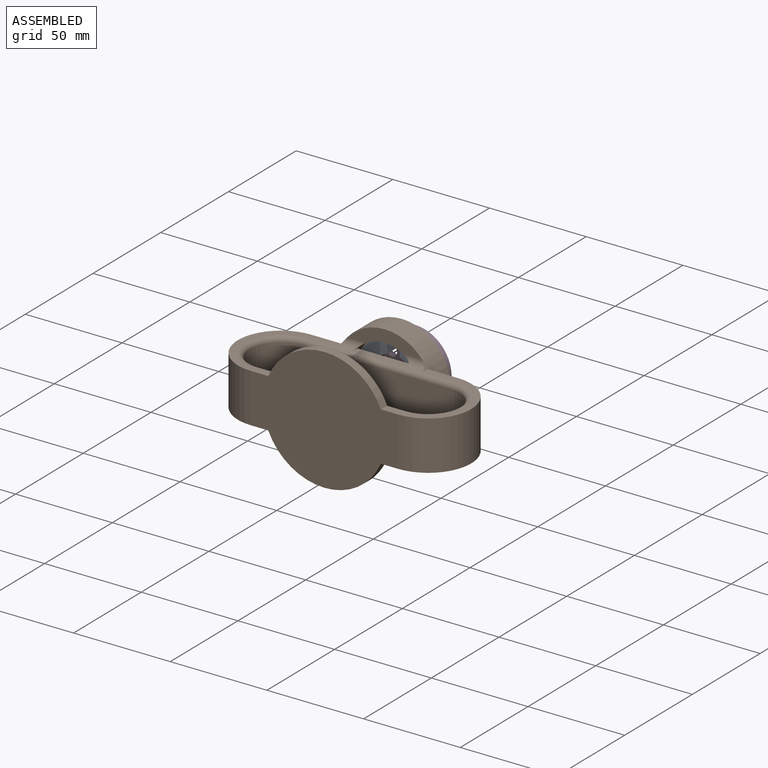
[diagram: assembled view]
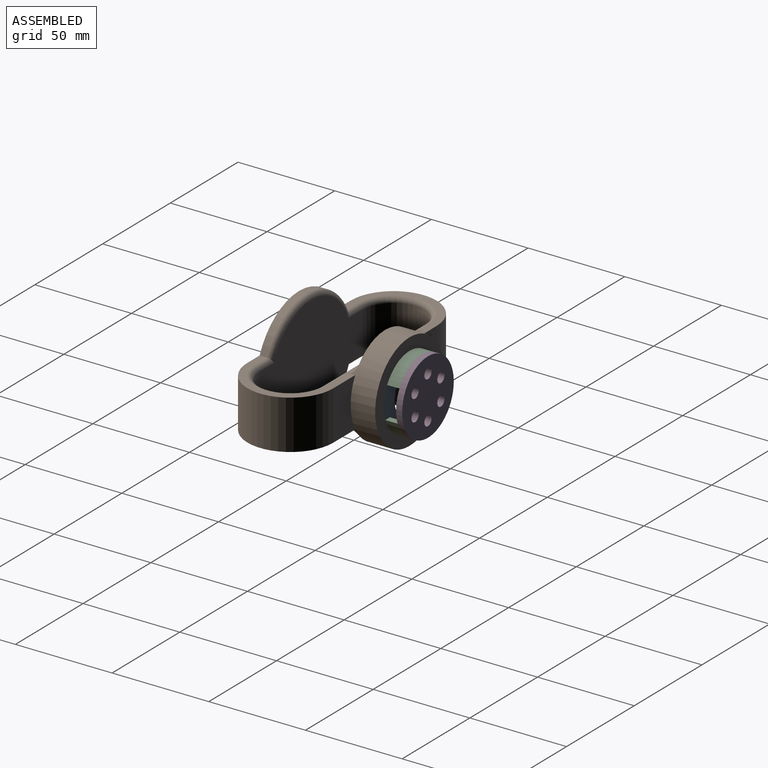
[diagram: assembled view, second angle]
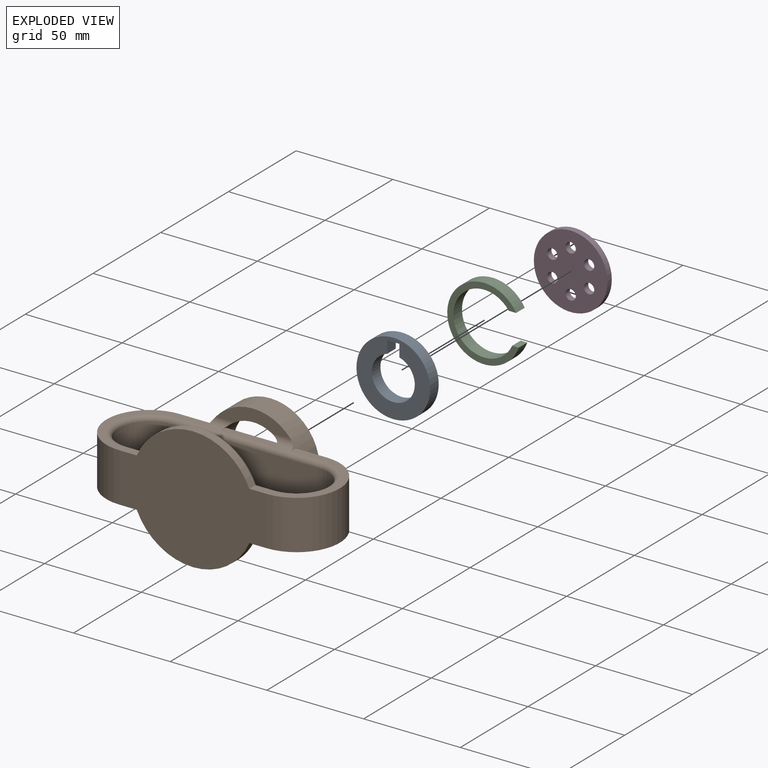
[diagram: exploded view]
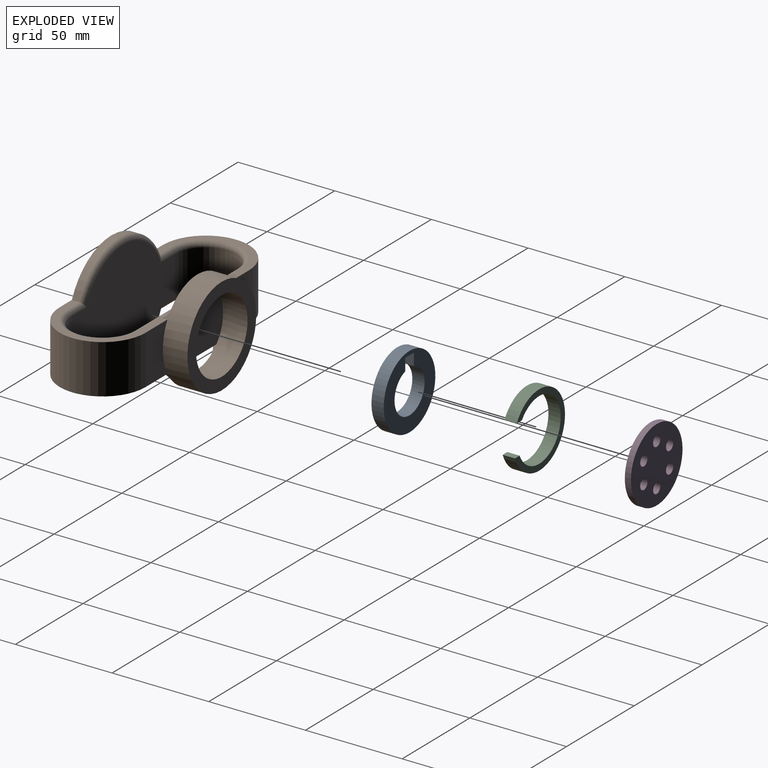
[diagram: exploded view, second angle]
ASSEMBLY  parts=4 mates=3
PART A: 7 faces, bbox 38.1x6.4x38.1 mm
  f0: plane 6.35x6.35mm, normal (1,0,0), area 40.3mm2, adj f1,f4,f5,f6
  f1: plane 6.35x6.35mm, normal (0,0,-1), area 40.3mm2, adj f0,f2,f5,f6
  f2: plane 6.35x6.35mm, normal (-1,0,0), area 40.3mm2, adj f1,f4,f5,f6
  f3: cylinder r=19.05mm len=38.1mm, axis (0,1,0), area 760.1mm2, adj f5,f6
  f4: cylinder r=11.11mm len=22.23mm, axis (0,1,0), area 402.5mm2, adj f0,f2,f5,f6
  f5: plane 38.1x38.1mm, normal (0,-1,0), area 713.8mm2, adj f0,f1,f2,f3,f4
  f6: plane 38.1x38.1mm, normal (0,1,0), area 713.8mm2, adj f0,f1,f2,f3,f4
PART B: 39 faces, bbox 120.7x57.2x68.7 mm
  f0: plane 28.4x3.81mm, normal (0,0,1), area 108.2mm2, adj f4,f20,f31
  f1: plane 44.45x38.33mm, normal (0,0,1), area 338.9mm2, adj f5,f8,f9,f19,f22,f29,f30,f31
  f2: plane 28.4x3.81mm, normal (0,0,-1), area 108.2mm2, adj f4,f20,f25
  f3: plane 44.45x38.33mm, normal (0,0,-1), area 338.9mm2, adj f5,f8,f9,f19,f21,f23,f24,f25
  f4: plane 38.1x25.4mm, normal (0,1,0), area 890.3mm2, adj f0,f2,f20
  f5: plane 25.4x16.1mm, normal (0,1,0), area 350.6mm2, adj f1,f3,f8,f19
  f6: plane 44.45x38.33mm, normal (0,0,1), area 338.9mm2, adj f9,f10,f11,f19,f22,f31,f33,f34
  f7: plane 44.45x38.33mm, normal (0,0,-1), area 338.9mm2, adj f9,f10,f11,f19,f21,f25,f27,f28
  f8: cylinder r=22.23mm len=44.45mm, axis (0,0,-1), area 1773.5mm2, adj f1,f3,f5,f9
  f9: plane 76.2x63.5mm, normal (0,-1,0), area 3533.6mm2, adj f1,f3,f6,f7,f8,f10,f21,f22
  f10: cylinder r=22.23mm len=44.45mm, axis (0,0,-1), area 1773.5mm2, adj f6,f7,f9,f11
  f11: plane 25.4x16.1mm, normal (0,1,0), area 350.6mm2, adj f6,f7,f10,f19
  f12: cylinder r=15.88mm len=31.75mm, axis (0,0,-1), area 1013.4mm2, adj f13,f15,f23,f29
  f13: plane 76.2x58.42mm, normal (0,1,0), area 3066.2mm2, adj f12,f14,f24,f26,f28,f30,f32,f34
  f14: cylinder r=15.88mm len=31.75mm, axis (0,0,-1), area 1013.4mm2, adj f13,f15,f27,f33
  f15: plane 76.2x20.32mm, normal (0,-1,0), area 1548.4mm2, adj f12,f14,f25,f31
  f16: plane 38.6x8.89mm, normal (0,-1,0), area 205.6mm2, adj f19,f20,f35,f36
  f17: plane 50.8x50.8mm, normal (0,1,0), area 886.7mm2, adj f19,f20
  f18: plane 38.6x8.89mm, normal (0,-1,0), area 205.6mm2, adj f19,f20,f37,f38
  f19: cylinder r=25.4mm len=50.8mm, axis (0,-1,0), area 2041.6mm2, adj f1,f3,f5,f6,f7,f11,f16,f17
  f20: cylinder r=19.05mm len=38.1mm, axis (0,-1,0), area 1538mm2, adj f0,f2,f4,f16,f17,f18,f35,f36
  f21: cylinder r=31.75mm len=58.2mm, axis (0,-1,0), area 280.5mm2, adj f3,f7,f9,f26
  f22: cylinder r=31.75mm len=58.2mm, axis (0,-1,0), area 280.5mm2, adj f1,f6,f9,f32
  f23: torus R=18.41mm, axis (0,0,1), area 210.6mm2, adj f3,f12,f24,f25
  f24: cylinder r=2.54mm len=10.71mm, axis (-1,0,0), area 38.4mm2, adj f3,f13,f23,f26
  f25: cylinder r=2.54mm len=76.2mm, axis (1,0,0), area 304mm2, adj f2,f3,f7,f15,f23,f27,f35,f36
  f26: torus R=29.21mm, axis (0,1,0), area 290mm2, adj f13,f21,f24,f28
  f27: torus R=18.41mm, axis (0,0,1), area 210.6mm2, adj f7,f14,f25,f28
  f28: cylinder r=2.54mm len=10.71mm, axis (-1,0,0), area 38.4mm2, adj f7,f13,f26,f27
  f29: torus R=18.41mm, axis (0,0,1), area 210.6mm2, adj f1,f12,f30,f31
  f30: cylinder r=2.54mm len=10.71mm, axis (1,0,0), area 38.4mm2, adj f1,f13,f29,f32
  f31: cylinder r=2.54mm len=76.2mm, axis (-1,0,0), area 304mm2, adj f0,f1,f6,f15,f29,f33,f37,f38
  f32: torus R=29.21mm, axis (0,1,0), area 290mm2, adj f13,f22,f30,f34
  f33: torus R=18.41mm, axis (0,0,1), area 210.6mm2, adj f6,f14,f31,f34
  f34: cylinder r=2.54mm len=10.71mm, axis (1,0,0), area 38.4mm2, adj f6,f13,f32,f33
  f35: cylinder r=3.81mm len=12.49mm, axis (1,0,0), area 50.2mm2, adj f16,f19,f20,f25
  f36: cylinder r=3.81mm len=12.49mm, axis (1,0,0), area 50.2mm2, adj f16,f19,f20,f25
  f37: cylinder r=3.81mm len=12.49mm, axis (-1,0,0), area 50.2mm2, adj f18,f19,f20,f31
  f38: cylinder r=3.81mm len=12.49mm, axis (-1,0,0), area 50.2mm2, adj f18,f19,f20,f31
PART C: 6 faces, bbox 37x6.4x38.1 mm
  f0: plane 6.35x3.42mm, normal (0,0,1), area 21.7mm2, adj f1,f3,f4,f5
  f1: cylinder r=15.88mm len=31.75mm, axis (0,1,0), area 527.2mm2, adj f0,f2,f4,f5
  f2: plane 6.35x3.78mm, normal (0,0,-1), area 24mm2, adj f1,f3,f4,f5
  f3: cylinder r=19.05mm len=38.1mm, axis (0,1,0), area 655.7mm2, adj f0,f2,f4,f5
  f4: plane 38.1x36.96mm, normal (0,-1,0), area 295.8mm2, adj f0,f1,f2,f3
  f5: plane 38.1x36.96mm, normal (0,1,0), area 295.8mm2, adj f0,f1,f2,f3
PART D: 9 faces, bbox 38.1x3.2x38.1 mm
  f0: cylinder r=2.65mm len=5.3mm, axis (0,1,0), area 52.9mm2, adj f7,f8
  f1: cylinder r=2.65mm len=5.3mm, axis (0,1,0), area 52.9mm2, adj f7,f8
  f2: cylinder r=2.65mm len=5.3mm, axis (0,1,0), area 52.9mm2, adj f7,f8
  f3: cylinder r=2.65mm len=5.3mm, axis (0,1,0), area 52.9mm2, adj f7,f8
  f4: cylinder r=2.65mm len=5.3mm, axis (0,1,0), area 52.9mm2, adj f7,f8
  f5: cylinder r=2.65mm len=5.3mm, axis (0,1,0), area 52.9mm2, adj f7,f8
  f6: cylinder r=19.05mm len=38.1mm, axis (0,1,0), area 380mm2, adj f7,f8
  f7: plane 38.1x38.1mm, normal (0,-1,0), area 1007.7mm2, adj f0,f1,f2,f3,f4,f5,f6
  f8: plane 38.1x38.1mm, normal (0,1,0), area 1007.7mm2, adj f0,f1,f2,f3,f4,f5,f6
PLACE A t=(-21.2,42.83,-50.55)mm
PLACE B t=(-95.03,-8.56,-11.18)mm
PLACE C t=(-21.23,42.83,-50.6)mm
PLACE D rot(axis=(1,0,0),180deg) t=(-21.23,39.66,53.64)mm
MATE fastened D.f6 <-> C.f1  axis (0,-1,0) through (6.44,39.66,1.52)mm
MATE fastened A.f3 <-> B.f19  axis (0,1,0) through (6.44,33.31,1.52)mm
MATE fastened C.f1 <-> A.f3  axis (0,-1,0) through (6.44,33.31,1.52)mm
